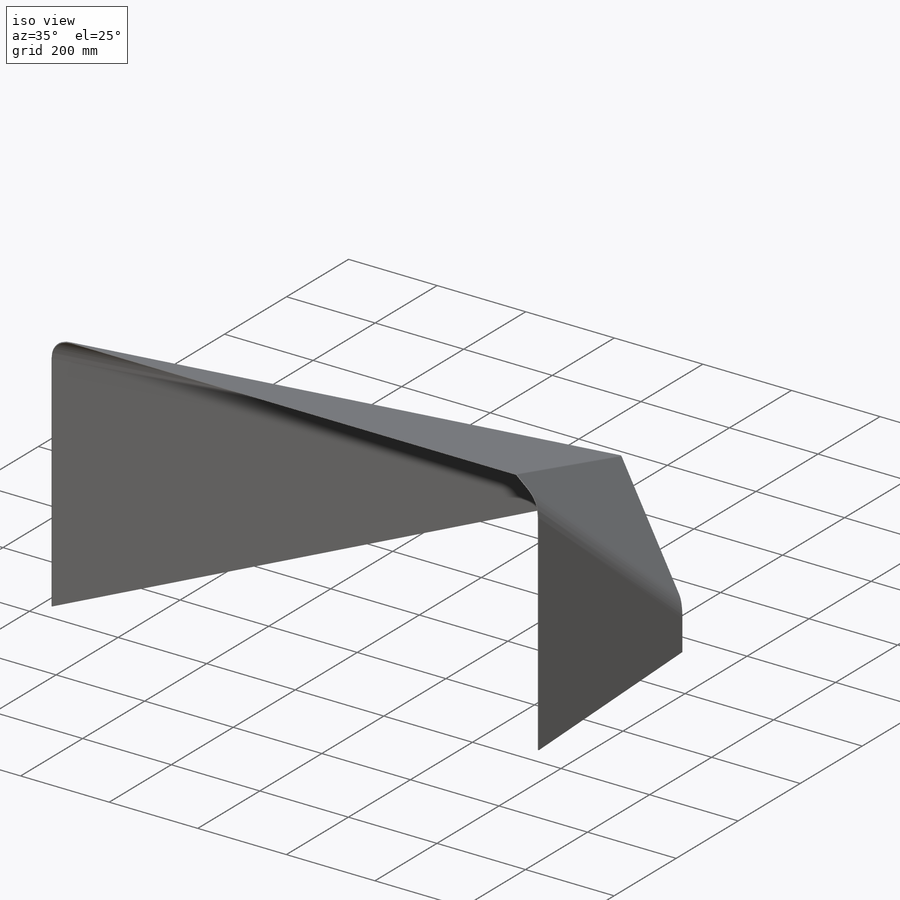
[diagram: iso view]
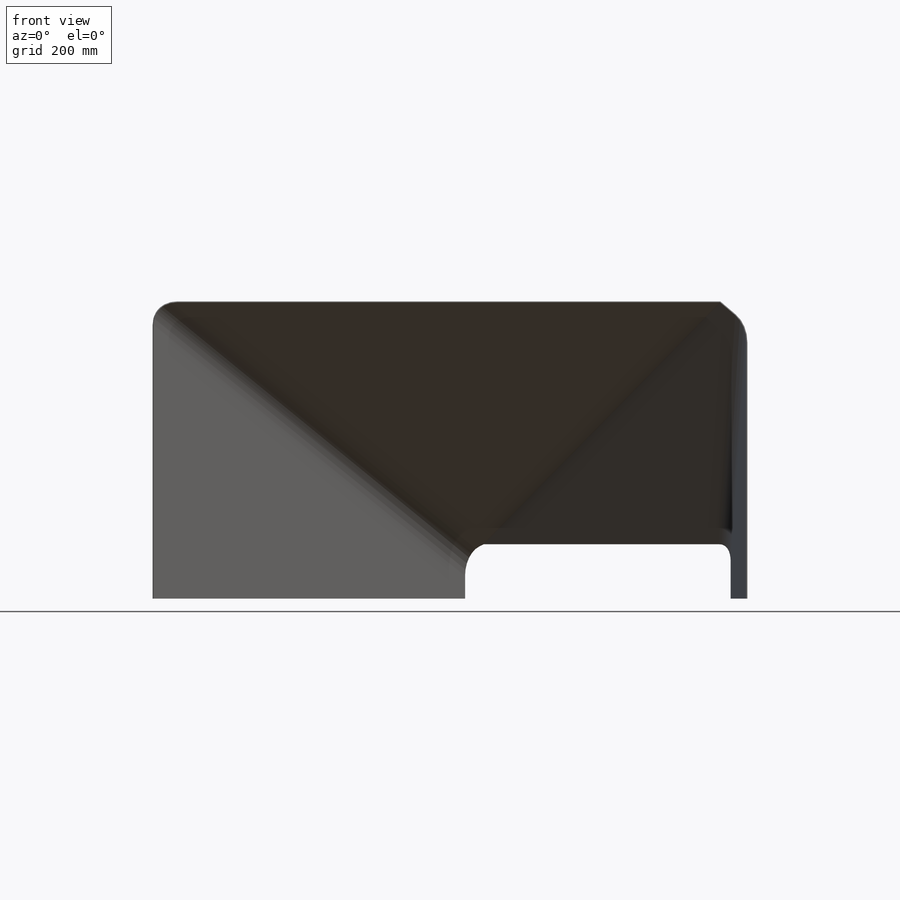
[diagram: front view]
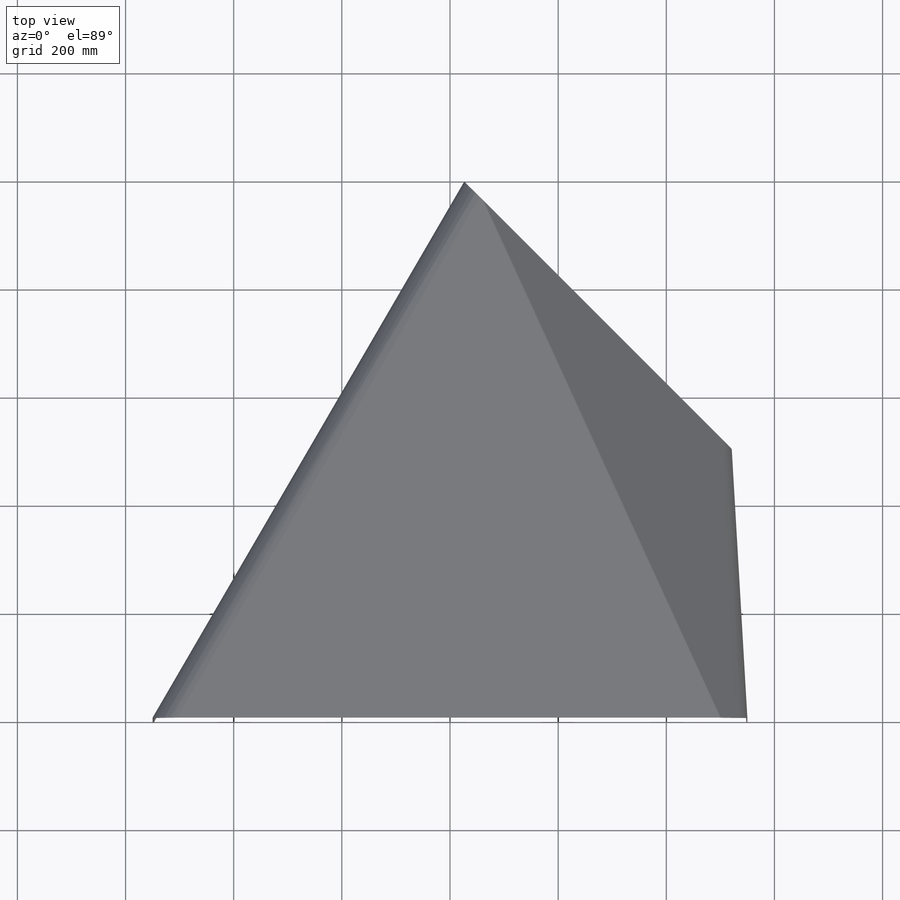
[diagram: top view]
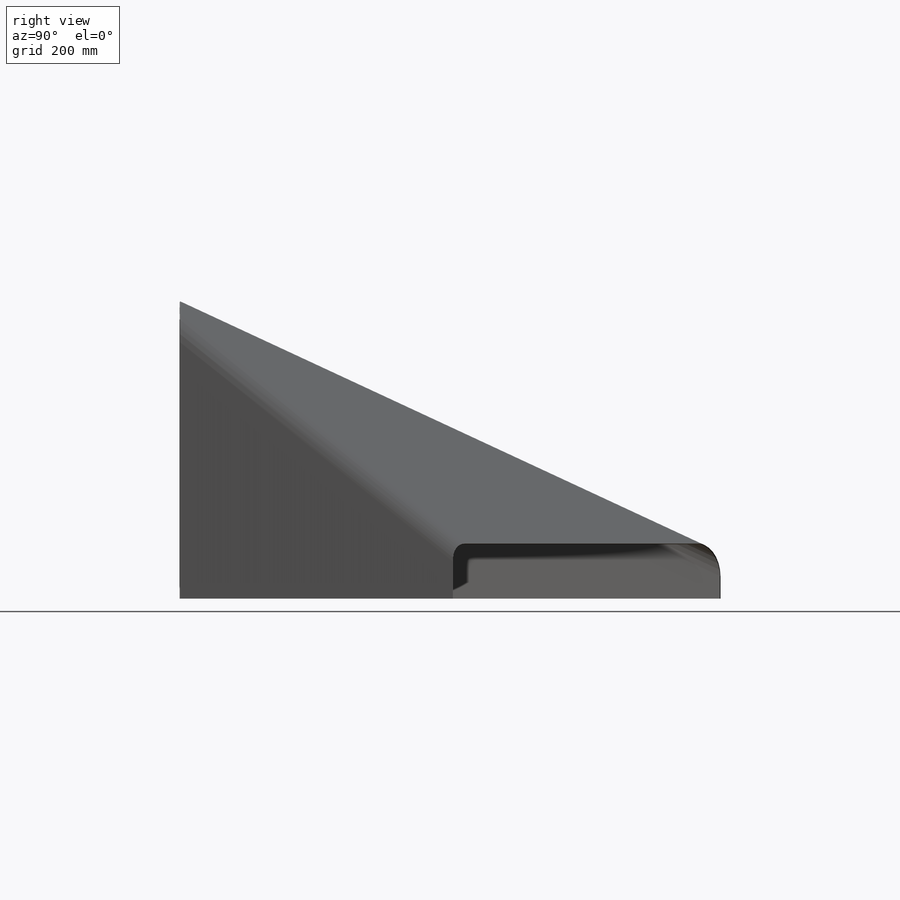
[diagram: right view]
SOLIDWORKS PART (.sldprt)
format: sldprt  version: not decoded by parser v0  size: 418,816 bytes
history: native  units: mm
features: surface_op x8, sketch x6, plane x3, material x1, fillet x1, sheet_metal_op x1 + 4 further entries (+10 scaffold rows collapsed; 1 parser-record rows omitted)
feature tree (35):
  scaffold x10  (default folders/planes/origin — collapsed)
  material  "Material <nicht festgelegt>"
  plane  "Ebene vorne"
  sketch  "3D-Skizze1"  dims[c1.D1=102.0mm c1.D2=~321.51419mm c1.D37=550.0mm c1.D3=~546.421747mm c1.D4=~538.188305mm c2.D37=550.0mm c2.D5=800.0mm c2.D6=~364.713187mm c2.D8=350.0mm c2.D7=~134.931649mm c3.D6=102.0mm c3.D8=~329.559328mm c3.D10=350.0mm c3.D9=~131.579738mm c4.D8=102.0mm c4.D10=102.0mm c5.D8=102.0mm c5.D6=~414.454705mm c6.D6=~37.869136deg c7.D6=~785.398163mm c7.D7=~414.454705mm c7.D4=350.0mm c7.D8=~181.024145mm c8.D4=350.0mm c8.D9=~127.991515mm c9.D4=102.0mm c9.D10=~52.839111mm c10.D4=102.0mm c10.D11=~1919.862177mm c10.D12=~63.687195mm c11.D4=85.0mm c11.D13=~86.566363mm c12.D4=85.0mm c12.D14=85.0mm c12.D15=~314.159265mm c12.D16=~314.159265mm c12.D17=~314.159265mm c12.D18=~314.159265mm c12.D19=85.0mm c12.D20=85.0mm c12.D21=~314.159265mm c12.D22=~314.159265mm c12.D23=~314.159265mm c12.D24=~314.159265mm c12.D25=~95.177397mm c12.D27=50.0mm c12.D26=~56.43801mm c13.D25=50.0mm c13.D27=~1750.568498mm c13.D29=~1570.796327mm c13.D28=~2093.535994mm c14.D25=~2.674478mm c14.D26=~2.674478mm c15.D25=~38.512739mm c15.D4=50.0mm c15.D26=~36.640599mm c16.D4=50.0mm c16.D27=50.0mm c16.D28=50.0mm c16.D29=~314.159265mm c16.D30=~314.159265mm c16.D31=~314.159265mm c16.D32=~314.159265mm c16.D33=~314.159265mm c16.D34=~314.159265mm c16.D35=~314.159265mm c16.D36=~314.159265mm]
  plane  "Ebene1"
  sketch  "Skizze1"
  sketch  "Skizze2"  dims[c1.D2=~102.255162mm c1.D1=50.0mm c1.D3=50.0mm c2.D1=20.0mm c2.D2=25.0mm]
  plane  "Ebene2"
  sketch  "Skizze3"  dims[D1=50.0mm D2=50.0mm D3=25.0mm]
  "3D-Skizze2"
  surface_op  "Oberfläche-Ausformung5"
  surface_op  "Oberfläche-Ausformung6"
  surface_op  "Oberfläche-Ausformung7"
  surface_op  "Oberfläche-Verlängern2"
  surface_op  "Oberfläche-Verlängern3"
  surface_op  "Oberfläche-Verlängern4"
  sketch  "Skizze4"  dims[D1=~65.710575mm]
  sketch  "Skizze5"  dims[D1=~52.63109mm]
  surface_op  "Oberfläche-Trimmen2"
  surface_op  "Oberfläche-Trimmen3"
  fillet  "Verrundung1"  Radius=50mm Biegung-Winkel1=0 Biegung-Rundung2=0
  sheet_metal_op  "Blech13"
  "Abwicklung13"
  "Abwickeln-<Biegung-Winkel1>1"
  "Abwickeln-<Biegung-Rundung2>1"
  parser-record x1  (decoder bookkeeping rows leaked as tree rows — omitted from the tree; the rows remain in map.json)
decode coverage: 6 of 16 modeling features carry decoded parameters; 4 rows unclassified (native names shown)
note: ~ marks probable driven/reference dimensions
summary: [note 2] (x6 features) parser:v0:name_prior (class ref resolved by constrained assignment + name prior)
note: suppression state not decoded; provenance and decode notes live in map.json
